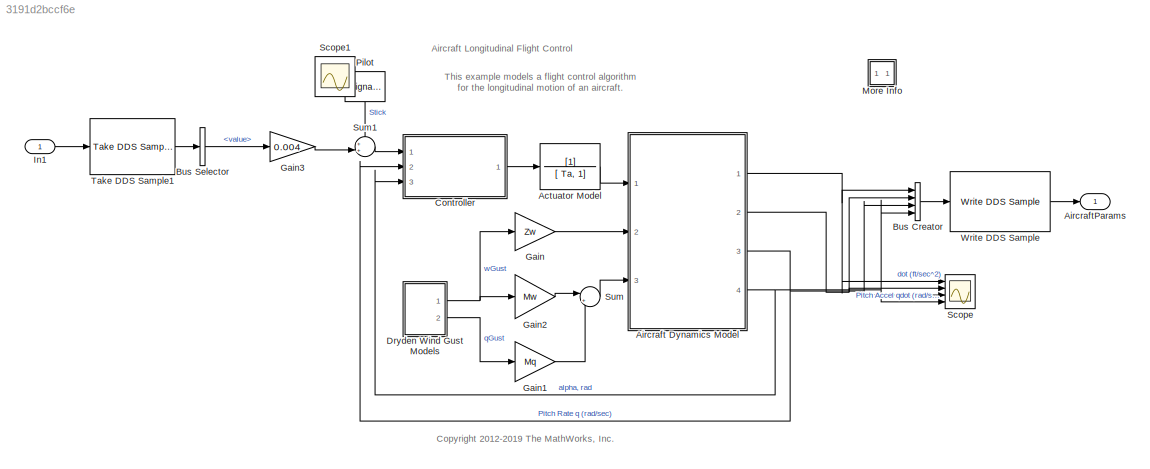
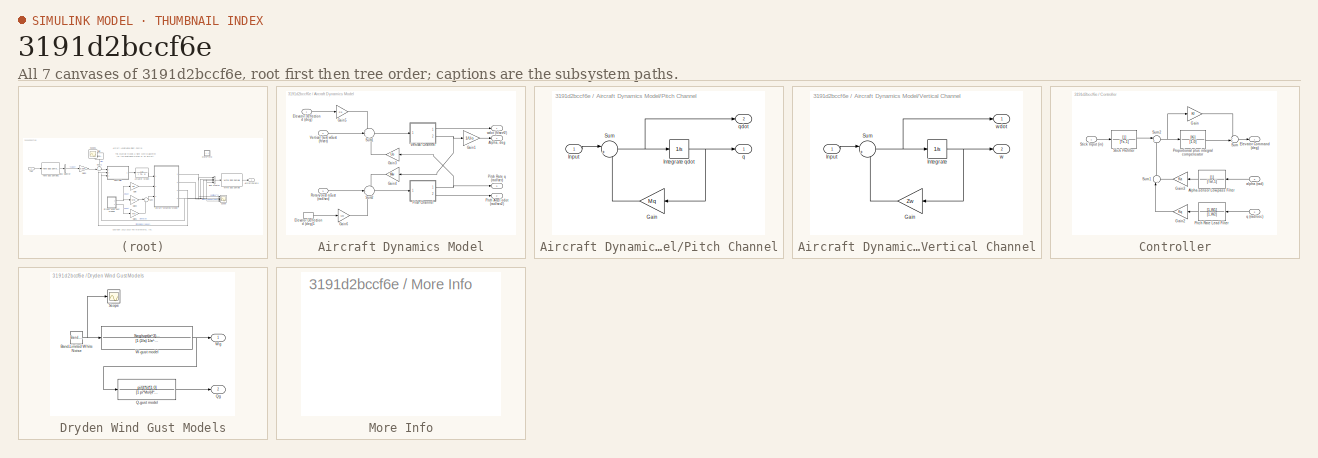
[diagram: thumbnail index - all 7 canvases of the model, root first then tree order]
MODEL slx_3191d2bccf6e
KIND model
CONFIG AbsTol = 1e-6
CONFIG EnableMultiTasking = off
CONFIG FixedStep = auto
CONFIG MaxStep = auto
CONFIG MinStep = auto
CONFIG RelTol = 1e-4
CONFIG SampleTimeConstraint = Unconstrained
CONFIG SolverName = FixedStepAuto
CONFIG StartTime = 0.0
CONFIG StopTime = 60
WORKSPACE source: MATLAB code (in-file)
WORKSPACE code: slexAircraftData
BLOCK [TransferFcn] Actuator Model
  Denominator = [ Ta, 1]
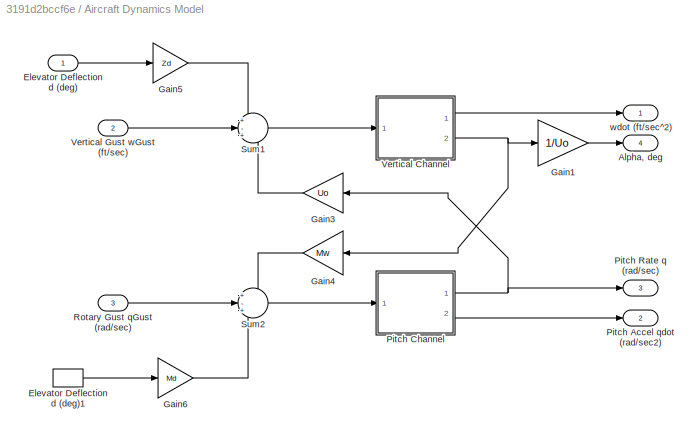
BLOCK [SubSystem] Aircraft Dynamics Model
  Ports = [3, 4]
  RequestExecContextInheritance = off
BLOCK [Outport] Aircraft Dynamics Model/Alpha, deg
  InitialOutput = 0
  Port = 4
  VectorParamsAs1DForOutWhenUnconnected = off
BLOCK [Inport] Aircraft Dynamics Model/Elevator Deflection d (deg)
BLOCK [InportShadow] Aircraft Dynamics Model/Elevator Deflection d (deg)1
BLOCK [Gain] Aircraft Dynamics Model/Gain1
  Gain = 1/Uo
  OutDataTypeStr = Inherit: Same as input
  ParamDataTypeStr = Inherit: Same as input
  SaturateOnIntegerOverflow = on
BLOCK [Gain] Aircraft Dynamics Model/Gain3
  Gain = Uo
  OutDataTypeStr = Inherit: Same as input
  ParamDataTypeStr = Inherit: Same as input
  SaturateOnIntegerOverflow = on
BLOCK [Gain] Aircraft Dynamics Model/Gain4
  Gain = Mw
  OutDataTypeStr = Inherit: Same as input
  ParamDataTypeStr = Inherit: Same as input
  SaturateOnIntegerOverflow = on
BLOCK [Gain] Aircraft Dynamics Model/Gain5
  Gain = Zd
  OutDataTypeStr = Inherit: Same as input
  ParamDataTypeStr = Inherit: Same as input
  SaturateOnIntegerOverflow = on
BLOCK [Gain] Aircraft Dynamics Model/Gain6
  Gain = Md
  OutDataTypeStr = Inherit: Same as input
  ParamDataTypeStr = Inherit: Same as input
  SaturateOnIntegerOverflow = on
BLOCK [Outport] Aircraft Dynamics Model/Pitch Accel qdot (rad//sec2)
  InitialOutput = 0
  Port = 2
  VectorParamsAs1DForOutWhenUnconnected = off
BLOCK [SubSystem] Aircraft Dynamics Model/Pitch Channel
  Ports = [1, 2]
  RequestExecContextInheritance = off
BLOCK [Gain] Aircraft Dynamics Model/Pitch Channel/Gain
  Gain = Mq
  OutDataTypeStr = Inherit: Same as input
  ParamDataTypeStr = Inherit: Same as input
  SaturateOnIntegerOverflow = on
BLOCK [Inport] Aircraft Dynamics Model/Pitch Channel/Input
BLOCK [Integrator] Aircraft Dynamics Model/Pitch Channel/Integrate qdot
  Ports = [1, 1]
BLOCK [Sum] Aircraft Dynamics Model/Pitch Channel/Sum
  InputSameDT = on
  Inputs = |++
  OutDataTypeStr = Inherit: Same as first input
  Ports = [2, 1]
  SaturateOnIntegerOverflow = on
BLOCK [Outport] Aircraft Dynamics Model/Pitch Channel/q
  InitialOutput = 0
  VectorParamsAs1DForOutWhenUnconnected = off
BLOCK [Outport] Aircraft Dynamics Model/Pitch Channel/qdot
  InitialOutput = 0
  Port = 2
  VectorParamsAs1DForOutWhenUnconnected = off
BLOCK [Outport] Aircraft Dynamics Model/Pitch Rate q (rad//sec)
  InitialOutput = 0
  NameLocation = top
  Port = 3
  VectorParamsAs1DForOutWhenUnconnected = off
BLOCK [Inport] Aircraft Dynamics Model/Rotary Gust qGust (rad//sec)
  Port = 3
BLOCK [Sum] Aircraft Dynamics Model/Sum1
  InputSameDT = on
  Inputs = +-+
  OutDataTypeStr = Inherit: Same as first input
  Ports = [3, 1]
  SaturateOnIntegerOverflow = on
BLOCK [Sum] Aircraft Dynamics Model/Sum2
  InputSameDT = on
  Inputs = +-+
  OutDataTypeStr = Inherit: Same as first input
  Ports = [3, 1]
  SaturateOnIntegerOverflow = on
BLOCK [SubSystem] Aircraft Dynamics Model/Vertical Channel
  Ports = [1, 2]
  RequestExecContextInheritance = off
BLOCK [Gain] Aircraft Dynamics Model/Vertical Channel/Gain
  Gain = Zw
  OutDataTypeStr = Inherit: Same as input
  ParamDataTypeStr = Inherit: Same as input
  SaturateOnIntegerOverflow = on
BLOCK [Inport] Aircraft Dynamics Model/Vertical Channel/Input
BLOCK [Integrator] Aircraft Dynamics Model/Vertical Channel/Integrate
  Ports = [1, 1]
BLOCK [Sum] Aircraft Dynamics Model/Vertical Channel/Sum
  InputSameDT = on
  Inputs = |++
  OutDataTypeStr = Inherit: Same as first input
  Ports = [2, 1]
  SaturateOnIntegerOverflow = on
BLOCK [Outport] Aircraft Dynamics Model/Vertical Channel/w
  InitialOutput = 0
  Port = 2
  VectorParamsAs1DForOutWhenUnconnected = off
BLOCK [Outport] Aircraft Dynamics Model/Vertical Channel/wdot
  InitialOutput = 0
  VectorParamsAs1DForOutWhenUnconnected = off
BLOCK [Inport] Aircraft Dynamics Model/Vertical Gust wGust (ft//sec)
  Port = 2
BLOCK [Outport] Aircraft Dynamics Model/wdot (ft//sec^2)
  InitialOutput = 0
  NameLocation = top
  VectorParamsAs1DForOutWhenUnconnected = off
BLOCK [Outport] AircraftParams
  BusOutputAsStruct = on
  InitialOutput = 0
  InputPortMessageModes = m
  OutDataTypeStr = Bus: aircraftParams
  VectorParamsAs1DForOutWhenUnconnected = off
BLOCK [BusCreator] Bus Creator
  DisplayOption = bar
  InheritFromInputs = off
  Inputs = 4
  NonVirtualBus = on
  OutDataTypeStr = Bus: aircraftParams
  Ports = [4, 1]
BLOCK [BusSelector] Bus Selector
  OutputSignals = value
  Ports = [1, 1]
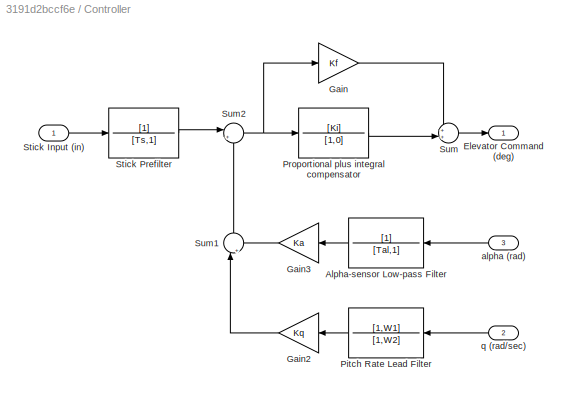
BLOCK [SubSystem] Controller
  Ports = [3, 1]
  RequestExecContextInheritance = off
BLOCK [TransferFcn] Controller/Alpha-sensor Low-pass Filter
  Denominator = [Tal,1]
BLOCK [Outport] Controller/Elevator Command (deg)
  InitialOutput = 0
  VectorParamsAs1DForOutWhenUnconnected = off
BLOCK [Gain] Controller/Gain
  Gain = Kf
  OutDataTypeStr = Inherit: Same as input
  ParamDataTypeStr = Inherit: Same as input
  SaturateOnIntegerOverflow = on
BLOCK [Gain] Controller/Gain2
  Gain = Kq
  OutDataTypeStr = Inherit: Same as input
  ParamDataTypeStr = Inherit: Same as input
  SaturateOnIntegerOverflow = on
BLOCK [Gain] Controller/Gain3
  Gain = Ka
  OutDataTypeStr = Inherit: Same as input
  ParamDataTypeStr = Inherit: Same as input
  SaturateOnIntegerOverflow = on
BLOCK [TransferFcn] Controller/Pitch Rate Lead Filter
  Denominator = [1,W2]
  Numerator = [1,W1]
BLOCK [TransferFcn] Controller/Proportional plus integral compensator
  Denominator = [1,0]
  Numerator = [Ki]
BLOCK [Inport] Controller/Stick Input (in)
BLOCK [TransferFcn] Controller/Stick Prefilter
  Denominator = [Ts,1]
BLOCK [Sum] Controller/Sum
  InputSameDT = on
  Inputs = ++|
  OutDataTypeStr = Inherit: Same as first input
  Ports = [2, 1]
  SaturateOnIntegerOverflow = on
BLOCK [Sum] Controller/Sum1
  InputSameDT = on
  Inputs = |++
  NameLocation = right
  OutDataTypeStr = Inherit: Same as first input
  Ports = [2, 1]
  SaturateOnIntegerOverflow = on
BLOCK [Sum] Controller/Sum2
  InputSameDT = on
  Inputs = |+-
  OutDataTypeStr = Inherit: Same as first input
  Ports = [2, 1]
  SaturateOnIntegerOverflow = on
BLOCK [Inport] Controller/alpha (rad)
  Port = 3
BLOCK [Inport] Controller/q (rad//sec)
  Port = 2
BLOCK [SubSystem] Dryden Wind Gust Models
  Ports = [0, 2]
  RequestExecContextInheritance = off
BLOCK [Reference] Dryden Wind Gust Models/Band-Limited White Noise  REF=simulink/Sources/Band-Limited
White Noise
  Ports = [0, 1]
  SourceBlock = simulink/Sources/Band-Limited\nWhite Noise
  SourceProductBaseCode = SL
  SourceType = Band-Limited White Noise.
BLOCK [TransferFcn] Dryden Wind Gust Models/Q-gust model
  Denominator = [1 pi*Vto/(4*b)]
  Numerator = pi/(4*b)*[1 0]
BLOCK [Outport] Dryden Wind Gust Models/Qg
  InitialOutput = 0
  Port = 2
  VectorParamsAs1DForOutWhenUnconnected = off
BLOCK [Scope] Dryden Wind Gust Models/Scope
  Floating = off
  NumInputPorts = 1
  Ports = [1]
  ScopeSpecificationString = Simulink.scopes.TimeScopeBlockCfg('CurrentConfiguration', extmgr.ConfigurationSet(extmgr.Configuration('Core','General UI',true),extmgr.Configuration('Core','Source UI',true),extmgr.Configuration('Sources','WiredSimulink',true,'DataLoggingVariableName','ScopeData1'),extmgr.Configuration('Visuals','Time Domain',true,'SerializedDisplays',{struct('MinYLimReal','-14.04782','MaxYLimReal','12.42464','YL...<+1389ch>
BLOCK [TransferFcn] Dryden Wind Gust Models/W-gust model
  Denominator = [1 (2/a) 1/a^2]
  Numerator = Swg/sqrt(a^3)*[sqrt(3)*a,1]
BLOCK [Outport] Dryden Wind Gust Models/Wg
  InitialOutput = 0
  VectorParamsAs1DForOutWhenUnconnected = off
BLOCK [Gain] Gain
  Gain = Zw
  OutDataTypeStr = Inherit: Same as input
  ParamDataTypeStr = Inherit: Same as input
  SaturateOnIntegerOverflow = on
BLOCK [Gain] Gain1
  Gain = Mq
  OutDataTypeStr = Inherit: Same as input
  ParamDataTypeStr = Inherit: Same as input
  SaturateOnIntegerOverflow = on
BLOCK [Gain] Gain2
  Gain = Mw
  OutDataTypeStr = Inherit: Same as input
  ParamDataTypeStr = Inherit: Same as input
  SaturateOnIntegerOverflow = on
BLOCK [Gain] Gain3
  Gain = 0.004
BLOCK [Inport] In1
  BusOutputAsStruct = on
  OutDataTypeStr = Bus: stickPilot
  OutputPortMessageModes = m
BLOCK [SubSystem] More Info
  OpenFcn = showExample('simulink_aerospace/AircraftLongitudinalFlightControlExample')
  Ports = []
  RequestExecContextInheritance = off
BLOCK [SignalGenerator] Pilot
  Amplitude = 0.5
  Frequency = 0.500000
  NameLocation = left
  Ports = [0, 1]
  Units = rad/sec
  WaveForm = square
BLOCK [Scope] Scope
  Floating = off
  NumInputPorts = 4
  Ports = [4]
  ScopeSpecificationString = Simulink.scopes.TimeScopeBlockCfg('CurrentConfiguration', extmgr.ConfigurationSet(extmgr.Configuration('Core','General UI',true),extmgr.Configuration('Core','Source UI',true),extmgr.Configuration('Sources','WiredSimulink',true,'DataLoggingVariableName','ScopeData2'),extmgr.Configuration('Visuals','Time Domain',true,'SerializedDisplays',{struct('MinYLimReal','-1046.28764','MaxYLimReal','1021.15768'...<+3407ch>
BLOCK [Scope] Scope1
  Floating = off
  IOType = viewer
  NumInputPorts = 1
  Ports = []
  ScopeSpecificationString = Simulink.scopes.TimeScopeBlockCfg('CurrentConfiguration', extmgr.ConfigurationSet(extmgr.Configuration('Core','General UI',true),extmgr.Configuration('Core','Source UI',true),extmgr.Configuration('Sources','WiredSimulink',true,'DataLoggingMaxPoints','7500','DataLoggingLimitDataPoints',true,'DataLoggingSaveFormat','Array','DataLoggingDecimation','1','DataLoggingDecimateData',true),extmgr.Configurat...<+2373ch>
BLOCK [Sum] Sum
  InputSameDT = on
  Inputs = |++
  OutDataTypeStr = Inherit: Same as first input
  Ports = [2, 1]
  SaturateOnIntegerOverflow = on
BLOCK [Sum] Sum1
  InputSameDT = on
  Inputs = ++|
  OutDataTypeStr = Inherit: Same as first input
  Ports = [2, 1]
  SaturateOnIntegerOverflow = on
BLOCK [Reference] Take DDS Sample1  REF=ddsblock/Take DDS Sample
  Ports = [1, 1]
  SourceBlock = ddsblock/Take DDS Sample
  SourceProductBaseCode = DD
  SourceType = Take DDS Sample
BLOCK [Reference] Write DDS Sample  REF=ddsblock/Write DDS Sample
  Ports = [1, 1]
  SourceBlock = ddsblock/Write DDS Sample
  SourceProductBaseCode = DD
  SourceType = Write DDS Sample
ANNOTATION (root): Aircraft Longitudinal Flight Control
ANNOTATION (root): <copyright redacted>
ANNOTATION (root): This example models a flight control algorithm for the longitudinal motion of an aircraft.
LINE Actuator Model:1 -> Aircraft Dynamics Model:1
LINE Aircraft Dynamics Model/Elevator Deflection d (deg)1:1 -> Aircraft Dynamics Model/Gain6:1
LINE Aircraft Dynamics Model/Elevator Deflection d (deg):1 -> Aircraft Dynamics Model/Gain5:1
LINE Aircraft Dynamics Model/Gain1:1 -> Aircraft Dynamics Model/Alpha, deg:1
LINE Aircraft Dynamics Model/Gain3:1 -> Aircraft Dynamics Model/Sum1:3
LINE Aircraft Dynamics Model/Gain4:1 -> Aircraft Dynamics Model/Sum2:1
LINE Aircraft Dynamics Model/Gain5:1 -> Aircraft Dynamics Model/Sum1:1
LINE Aircraft Dynamics Model/Gain6:1 -> Aircraft Dynamics Model/Sum2:3
LINE Aircraft Dynamics Model/Pitch Channel/Gain:1 -> Aircraft Dynamics Model/Pitch Channel/Sum:2
LINE Aircraft Dynamics Model/Pitch Channel/Input:1 -> Aircraft Dynamics Model/Pitch Channel/Sum:1
NET Aircraft Dynamics Model/Pitch Channel/Integrate qdot:1 -> Aircraft Dynamics Model/Pitch Channel/Gain:1, Aircraft Dynamics Model/Pitch Channel/q:1
NET Aircraft Dynamics Model/Pitch Channel/Sum:1 -> Aircraft Dynamics Model/Pitch Channel/Integrate qdot:1, Aircraft Dynamics Model/Pitch Channel/qdot:1
NET Aircraft Dynamics Model/Pitch Channel:1 -> Aircraft Dynamics Model/Gain3:1, Aircraft Dynamics Model/Pitch Rate q (rad//sec):1
LINE Aircraft Dynamics Model/Pitch Channel:2 -> Aircraft Dynamics Model/Pitch Accel qdot (rad//sec2):1
LINE Aircraft Dynamics Model/Rotary Gust qGust (rad//sec):1 -> Aircraft Dynamics Model/Sum2:2
LINE Aircraft Dynamics Model/Sum1:1 -> Aircraft Dynamics Model/Vertical Channel:1
LINE Aircraft Dynamics Model/Sum2:1 -> Aircraft Dynamics Model/Pitch Channel:1
LINE Aircraft Dynamics Model/Vertical Channel/Gain:1 -> Aircraft Dynamics Model/Vertical Channel/Sum:2
LINE Aircraft Dynamics Model/Vertical Channel/Input:1 -> Aircraft Dynamics Model/Vertical Channel/Sum:1
NET Aircraft Dynamics Model/Vertical Channel/Integrate:1 -> Aircraft Dynamics Model/Vertical Channel/Gain:1, Aircraft Dynamics Model/Vertical Channel/w:1
NET Aircraft Dynamics Model/Vertical Channel/Sum:1 -> Aircraft Dynamics Model/Vertical Channel/Integrate:1, Aircraft Dynamics Model/Vertical Channel/wdot:1
LINE Aircraft Dynamics Model/Vertical Channel:1 -> Aircraft Dynamics Model/wdot (ft//sec^2):1
NET Aircraft Dynamics Model/Vertical Channel:2 -> Aircraft Dynamics Model/Gain1:1, Aircraft Dynamics Model/Gain4:1
LINE Aircraft Dynamics Model/Vertical Gust wGust (ft//sec):1 -> Aircraft Dynamics Model/Sum1:2
NET Aircraft Dynamics Model:1 -> Bus Creator:1, Scope:1
NET Aircraft Dynamics Model:2 -> Bus Creator:2, Scope:2
NET Aircraft Dynamics Model:3 -> Bus Creator:3, Controller:2, Scope:3
NET Aircraft Dynamics Model:4 -> Bus Creator:4, Controller:3, Scope:4
LINE Bus Creator:1 -> Write DDS Sample:1
LINE Bus Selector:1 -> Gain3:1
LINE Controller/Alpha-sensor Low-pass Filter:1 -> Controller/Gain3:1
LINE Controller/Gain2:1 -> Controller/Sum1:1
LINE Controller/Gain3:1 -> Controller/Sum1:2
LINE Controller/Gain:1 -> Controller/Sum:1
LINE Controller/Pitch Rate Lead Filter:1 -> Controller/Gain2:1
LINE Controller/Proportional plus integral compensator:1 -> Controller/Sum:2
LINE Controller/Stick Input (in):1 -> Controller/Stick Prefilter:1
LINE Controller/Stick Prefilter:1 -> Controller/Sum2:1
LINE Controller/Sum1:1 -> Controller/Sum2:2
NET Controller/Sum2:1 -> Controller/Gain:1, Controller/Proportional plus integral compensator:1
LINE Controller/Sum:1 -> Controller/Elevator Command (deg):1
LINE Controller/alpha (rad):1 -> Controller/Alpha-sensor Low-pass Filter:1
LINE Controller/q (rad//sec):1 -> Controller/Pitch Rate Lead Filter:1
LINE Controller:1 -> Actuator Model:1
NET Dryden Wind Gust Models/Band-Limited White Noise:1 -> Dryden Wind Gust Models/Scope:1, Dryden Wind Gust Models/W-gust model:1
LINE Dryden Wind Gust Models/Q-gust model:1 -> Dryden Wind Gust Models/Qg:1
NET Dryden Wind Gust Models/W-gust model:1 -> Dryden Wind Gust Models/Q-gust model:1, Dryden Wind Gust Models/Wg:1
NET Dryden Wind Gust Models:1 -> Gain2:1, Gain:1
LINE Dryden Wind Gust Models:2 -> Gain1:1
LINE Gain1:1 -> Sum:2
LINE Gain2:1 -> Sum:1
LINE Gain3:1 -> Sum1:2
LINE Gain:1 -> Aircraft Dynamics Model:2
LINE In1:1 -> Take DDS Sample1:1
LINE Pilot:1 -> Sum1:1
LINE Sum1:1 -> Controller:1
LINE Sum:1 -> Aircraft Dynamics Model:3
LINE Take DDS Sample1:1 -> Bus Selector:1
LINE Write DDS Sample:1 -> AircraftParams:1
note: NET lines group one-source signal fan-out (src -> all destinations, sorted); 1:1 wires keep LINE
